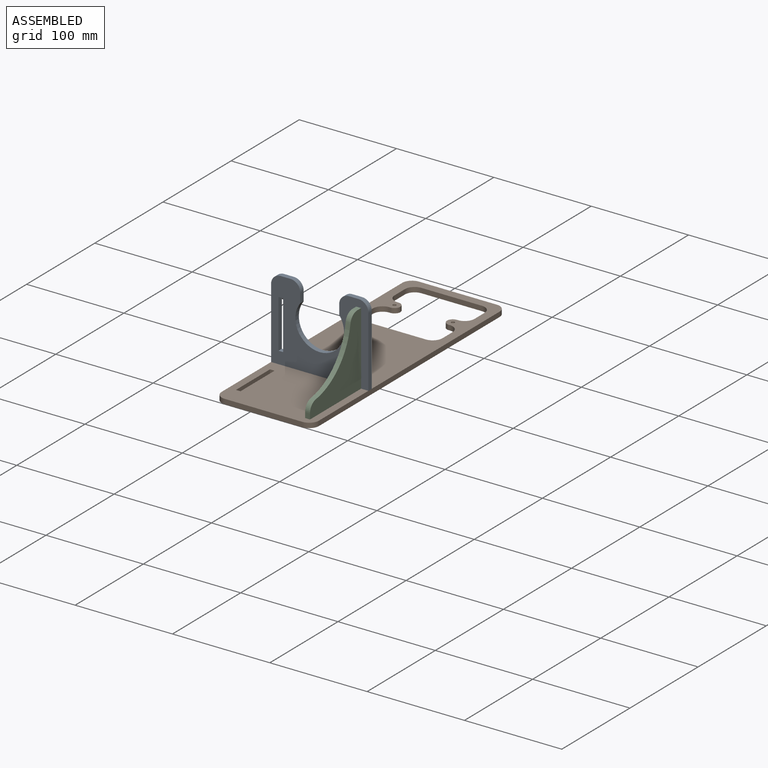
[diagram: assembled view]
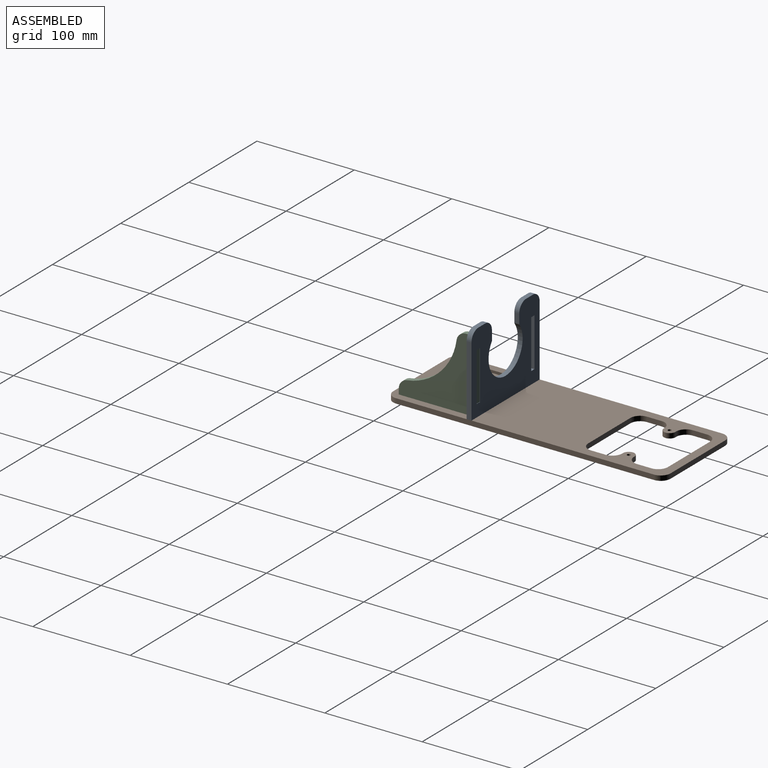
[diagram: assembled view, second angle]
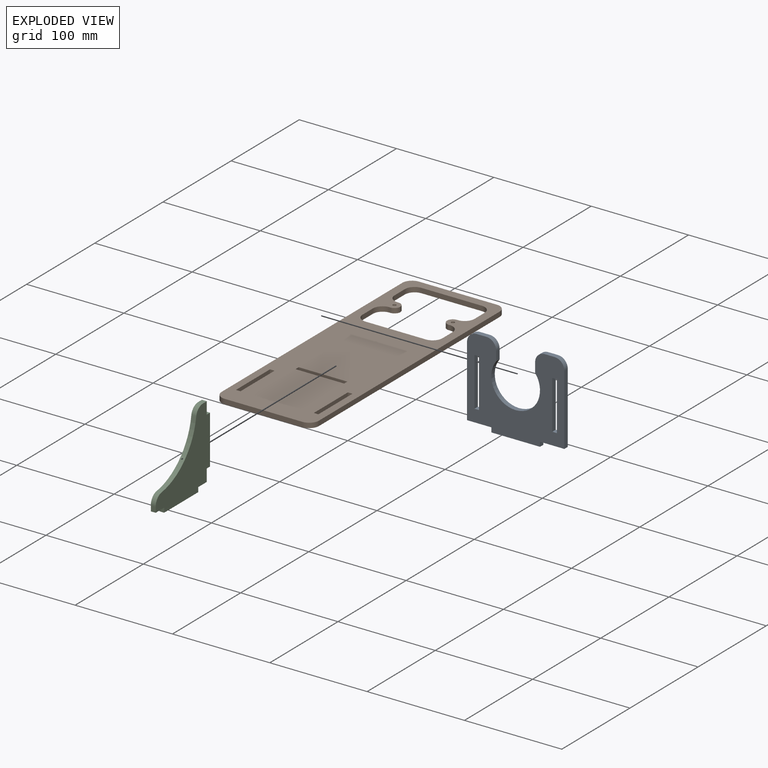
[diagram: exploded view]
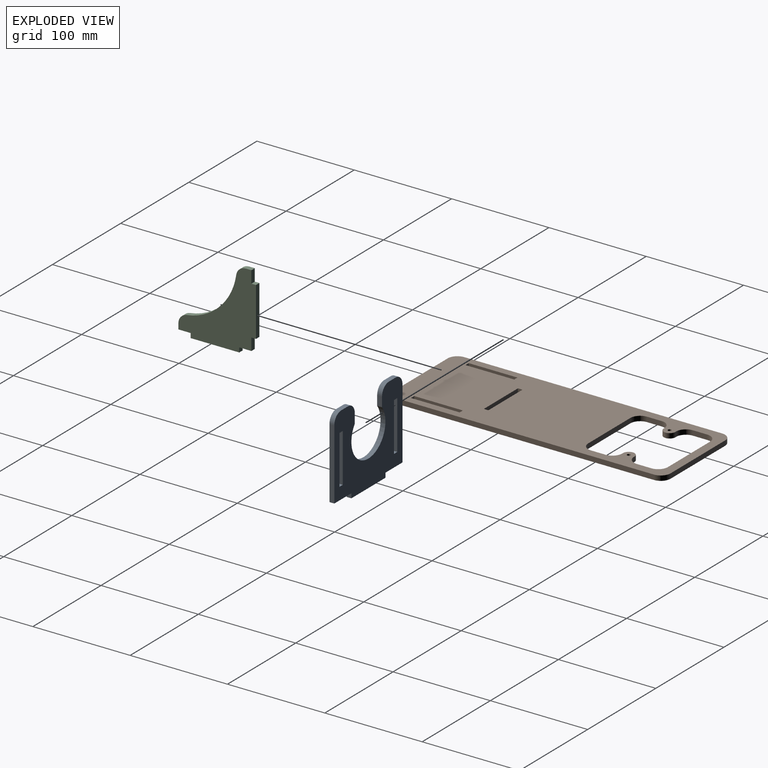
[diagram: exploded view, second angle]
ASSEMBLY  parts=3 mates=2
PART A: 26 faces, bbox 100x87.4x5 mm
  f0: plane 10x5mm, normal (0,-1,0), area 50mm2, adj f20,f21,f22,f25
  f1: plane 10x5mm, normal (1,0,0), area 50mm2, adj f2,f20,f21,f22
  f2: cylinder r=25mm len=50mm, axis (0,0,-1), area 553.6mm2, adj f1,f3,f20,f21
  f3: plane 10x5mm, normal (-1,0,0), area 50mm2, adj f2,f20,f21,f23
  f4: plane 10x5mm, normal (0,-1,0), area 50mm2, adj f20,f21,f23,f24
  f5: plane 72.65x5mm, normal (1,0,0), area 363.2mm2, adj f6,f20,f21,f24
  f6: plane 25x5mm, normal (0,1,0), area 125mm2, adj f5,f7,f20,f21
  f7: plane 5x4.7mm, normal (1,0,0), area 23.5mm2, adj f6,f8,f20,f21
  f8: plane 50x5mm, normal (0,1,0), area 250mm2, adj f7,f9,f20,f21
  f9: plane 5x4.7mm, normal (-1,0,0), area 23.5mm2, adj f8,f10,f20,f21
  f10: plane 25x5mm, normal (0,1,0), area 125mm2, adj f9,f19,f20,f21
  f11: plane 50x5mm, normal (1,0,0), area 250mm2, adj f12,f17,f20,f21
  f12: plane 5x4.7mm, normal (0,-1,0), area 23.5mm2, adj f11,f13,f20,f21
  f13: plane 50x5mm, normal (-1,0,0), area 250mm2, adj f12,f17,f20,f21
  f14: plane 50x5mm, normal (1,0,0), area 250mm2, adj f15,f18,f20,f21
  f15: plane 5x4.7mm, normal (0,-1,0), area 23.5mm2, adj f14,f16,f20,f21
  f16: plane 50x5mm, normal (-1,0,0), area 250mm2, adj f15,f18,f20,f21
  f17: plane 5x4.7mm, normal (0,1,0), area 23.5mm2, adj f11,f13,f20,f21
  f18: plane 5x4.7mm, normal (0,1,0), area 23.5mm2, adj f14,f16,f20,f21
  f19: plane 72.65x5mm, normal (-1,0,0), area 363.2mm2, adj f10,f20,f21,f25
  f20: plane 100x87.35mm, normal (0,0,1), area 5460.2mm2, adj f0,f1,f2,f3,f4,f5,f6,f7
  f21: plane 100x87.35mm, normal (0,0,-1), area 5460.2mm2, adj f0,f1,f2,f3,f4,f5,f6,f7
  f22: cylinder r=10mm len=10mm, axis (0,0,1), area 78.5mm2, adj f0,f1,f20,f21
  f23: cylinder r=10mm len=10mm, axis (0,0,1), area 78.5mm2, adj f3,f4,f20,f21
  f24: cylinder r=10mm len=10mm, axis (0,0,-1), area 78.5mm2, adj f4,f5,f20,f21
  f25: cylinder r=10mm len=10mm, axis (0,0,1), area 78.5mm2, adj f0,f19,f20,f21
PART B: 44 faces, bbox 100x285x5 mm
  f0: plane 80x5mm, normal (0,-1,0), area 400mm2, adj f28,f29,f38,f41
  f1: plane 265x5mm, normal (1,0,0), area 1325mm2, adj f28,f29,f38,f39
  f2: plane 80x5mm, normal (0,1,0), area 400mm2, adj f28,f29,f39,f40
  f3: plane 5x4.7mm, normal (-1,0,0), area 23.5mm2, adj f4,f23,f28,f29
  f4: plane 50x5mm, normal (0,1,0), area 250mm2, adj f3,f5,f28,f29
  f5: plane 5x4.7mm, normal (1,0,0), area 23.5mm2, adj f4,f23,f28,f29
  f6: plane 50x5mm, normal (1,0,0), area 250mm2, adj f7,f24,f28,f29
  f7: plane 5x4.7mm, normal (0,-1,0), area 23.5mm2, adj f6,f8,f28,f29
  f8: plane 50x5mm, normal (-1,0,0), area 250mm2, adj f7,f24,f28,f29
  f9: plane 15.03x5mm, normal (-1,0,0), area 75.1mm2, adj f28,f29,f30,f37
  f10: plane 5x1.59mm, normal (0,1,0), area 7.9mm2, adj f11,f28,f29,f30
  f11: cylinder r=6mm len=11.97mm, axis (0,0,-1), area 91.3mm2, adj f10,f12,f28,f29
  f12: plane 5x1mm, normal (0,-1,0), area 5mm2, adj f11,f28,f29,f31
  f13: plane 15x5mm, normal (-1,0,0), area 75mm2, adj f28,f29,f31,f32
  f14: plane 62x5mm, normal (0,1,0), area 310mm2, adj f28,f29,f32,f33
  f15: plane 15x5mm, normal (1,0,0), area 75mm2, adj f28,f29,f33,f34
  f16: plane 5x1mm, normal (0,-1,0), area 5mm2, adj f17,f28,f29,f34
  f17: cylinder r=6mm len=12mm, axis (0,0,-1), area 94.2mm2, adj f16,f18,f28,f29
  f18: plane 5x1mm, normal (0,1,0), area 5mm2, adj f17,f28,f29,f35
  f19: plane 15x5mm, normal (1,0,0), area 75mm2, adj f28,f29,f35,f36
  f20: plane 5x4.7mm, normal (0,-1,0), area 23.5mm2, adj f21,f26,f28,f29
  f21: plane 50x5mm, normal (-1,0,0), area 250mm2, adj f20,f22,f28,f29
  f22: plane 5x4.7mm, normal (0,1,0), area 23.5mm2, adj f21,f26,f28,f29
  f23: plane 50x5mm, normal (0,-1,0), area 250mm2, adj f3,f5,f28,f29
  f24: plane 5x4.7mm, normal (0,1,0), area 23.5mm2, adj f6,f8,f28,f29
  f25: plane 62x5mm, normal (0,-1,0), area 310mm2, adj f28,f29,f36,f37
  f26: plane 50x5mm, normal (1,0,0), area 250mm2, adj f20,f22,f28,f29
  f27: plane 265x5mm, normal (-1,0,0), area 1325mm2, adj f28,f29,f40,f41
  f28: plane 285x100mm, normal (0,0,1), area 21514.4mm2, adj f0,f1,f2,f3,f4,f5,f6,f7
  f29: plane 285x100mm, normal (0,0,-1), area 21514.4mm2, adj f0,f1,f2,f3,f4,f5,f6,f7
  f30: cylinder r=10mm len=10.01mm, axis (0,0,1), area 78.6mm2, adj f9,f10,f28,f29
  f31: cylinder r=10mm len=10mm, axis (0,0,-1), area 78.5mm2, adj f12,f13,f28,f29
  f32: cylinder r=10mm len=10mm, axis (0,0,-1), area 78.5mm2, adj f13,f14,f28,f29
  f33: cylinder r=10mm len=10mm, axis (0,0,1), area 78.5mm2, adj f14,f15,f28,f29
  f34: cylinder r=10mm len=10mm, axis (0,0,-1), area 78.5mm2, adj f15,f16,f28,f29
  f35: cylinder r=10mm len=10mm, axis (0,0,1), area 78.5mm2, adj f18,f19,f28,f29
  f36: cylinder r=10mm len=10mm, axis (0,0,-1), area 78.5mm2, adj f19,f25,f28,f29
  f37: cylinder r=10mm len=10mm, axis (0,0,1), area 78.5mm2, adj f9,f25,f28,f29
  f38: cylinder r=10mm len=10mm, axis (0,0,1), area 78.5mm2, adj f0,f1,f28,f29
  f39: cylinder r=10mm len=10mm, axis (0,0,-1), area 78.5mm2, adj f1,f2,f28,f29
  f40: cylinder r=10mm len=10mm, axis (0,0,1), area 78.5mm2, adj f2,f27,f28,f29
  f41: cylinder r=10mm len=10mm, axis (0,0,-1), area 78.5mm2, adj f0,f27,f28,f29
  f42: cylinder r=1.75mm len=5mm, axis (0,0,-1), area 55mm2, adj f28,f29
  f43: cylinder r=1.75mm len=5mm, axis (0,0,-1), area 55mm2, adj f28,f29
PART C: 17 faces, bbox 79.7x79.7x5 mm
  f0: plane 12.5x5mm, normal (-1,0,0), area 62.5mm2, adj f1,f12,f13,f14
  f1: plane 5x4.7mm, normal (0,1,0), area 23.5mm2, adj f0,f2,f13,f14
  f2: plane 50x5mm, normal (-1,0,0), area 250mm2, adj f1,f3,f13,f14
  f3: plane 5x4.7mm, normal (0,-1,0), area 23.5mm2, adj f2,f4,f13,f14
  f4: plane 12.5x5mm, normal (-1,0,0), area 62.5mm2, adj f3,f5,f13,f14
  f5: plane 12.5x5mm, normal (0,-1,0), area 62.5mm2, adj f4,f6,f13,f14
  f6: plane 5x4.7mm, normal (-1,0,0), area 23.5mm2, adj f5,f7,f13,f14
  f7: plane 50x5mm, normal (0,-1,0), area 250mm2, adj f6,f8,f13,f14
  f8: plane 5x4.7mm, normal (1,0,0), area 23.5mm2, adj f7,f9,f13,f14
  f9: plane 12.5x5mm, normal (0,-1,0), area 62.5mm2, adj f8,f10,f13,f14
  f10: plane 5.72x5mm, normal (1,0,0), area 28.6mm2, adj f9,f13,f14,f15
  f11: cylinder r=60mm len=50.81mm, axis (0,0,-1), area 385.2mm2, adj f13,f14,f15,f16
  f12: plane 5.72x5mm, normal (0,1,0), area 28.6mm2, adj f0,f13,f14,f16
  f13: plane 79.7x79.7mm, normal (0,0,1), area 3233.5mm2, adj f0,f1,f2,f3,f4,f5,f6,f7
  f14: plane 79.7x79.7mm, normal (0,0,-1), area 3233.5mm2, adj f0,f1,f2,f3,f4,f5,f6,f7
  f15: cylinder r=10mm len=9.9mm, axis (0,0,-1), area 71.4mm2, adj f10,f11,f13,f14
  f16: cylinder r=10mm len=9.9mm, axis (0,0,-1), area 71.4mm2, adj f11,f12,f13,f14
PLACE A rot(axis=(-1,0,0),90deg) t=(-180.68,-25.86,-127.48)mm
PLACE B t=(-80.68,34.14,-72.48)mm
PLACE C rot(axis=(0.71,0,0.71),180deg) t=(-43.18,-76.31,-122.33)mm
MATE fastened A.f7 <-> B.f3  axis (1,0,0) through (-55.68,-23.36,-69.98)mm
MATE fastened B.f24 <-> C.f1  axis (0,1,0) through (-40.68,-88.36,-69.98)mm
